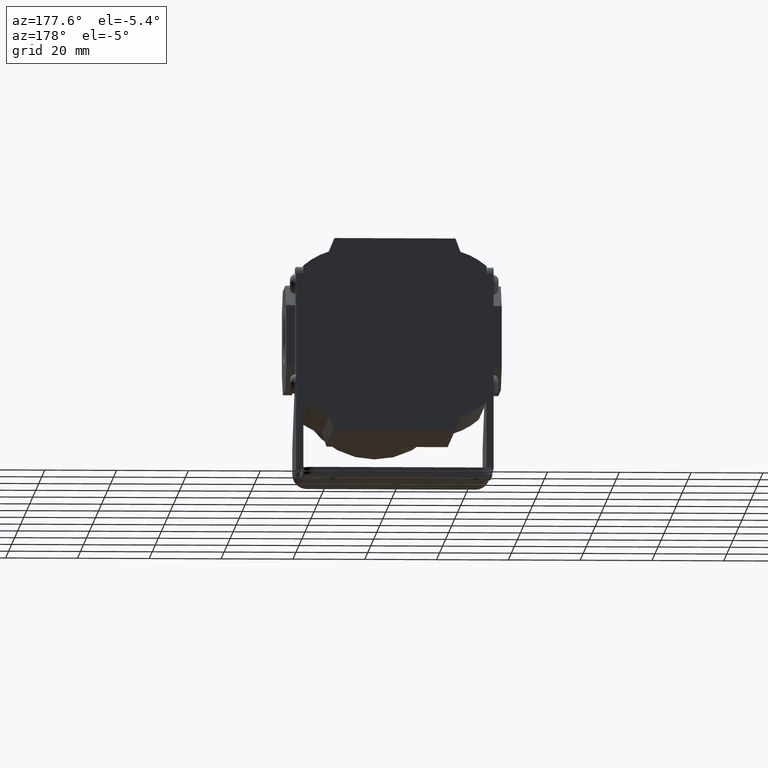
[diagram: clean part render]
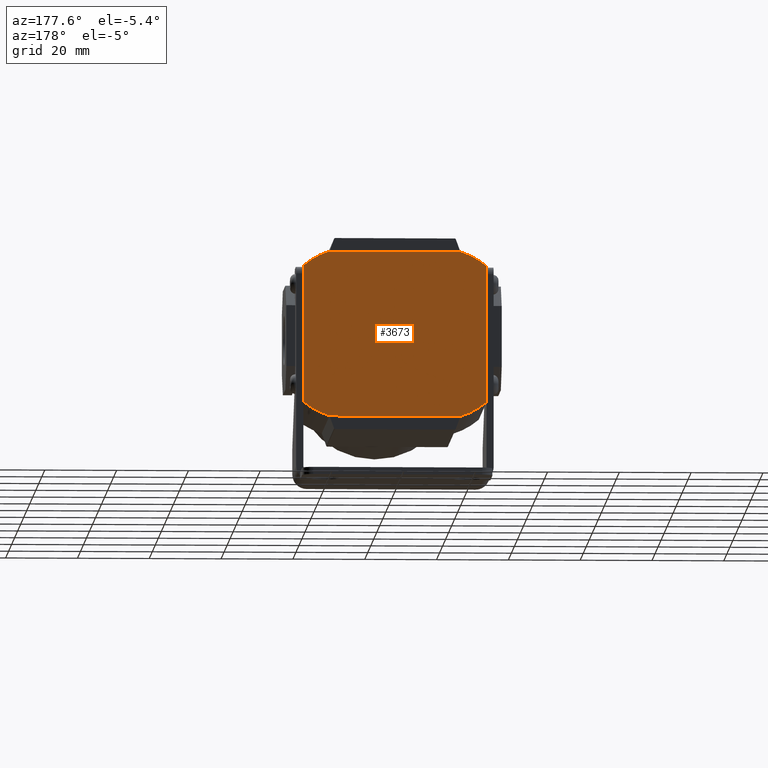
[diagram: same view with one face highlighted and labeled with its STEP entity id]
A machine part, auxiliary view. The second image highlights one B-rep face of the part: STEP entity #3673.
In plain terms, the highlighted planar face has unit normal (0, -1, 0).
Its self-contained STEP definition (entity closure, byte-faithful):
#99 = VERTEX_POINT ( 'NONE', #11549 ) ;
#122 = CARTESIAN_POINT ( 'NONE',  ( -12.44075424135393600, 21.00000000000000000, 3.852191570551038300 ) ) ;
#196 = DIRECTION ( 'NONE',  ( 9.130123557772670800E-017, 1.000000000000000000, -0.0000000000000000000 ) ) ;
#211 = VECTOR ( 'NONE', #10165, 1000.000000000000000 ) ;
#466 = CARTESIAN_POINT ( 'NONE',  ( 25.49999999999999600, 21.00000000000000000, 18.99999999999999600 ) ) ;
#474 = VERTEX_POINT ( 'NONE', #10865 ) ;
#476 = VERTEX_POINT ( 'NONE', #6152 ) ;
#493 = AXIS2_PLACEMENT_3D ( 'NONE', #9372, #3730, #10315 ) ;
#500 = DIRECTION ( 'NONE',  ( 1.000000000000000000, 1.360567432138672300E-016, 0.0000000000000000000 ) ) ;
#623 = EDGE_CURVE ( 'NONE', #8665, #474, #7223, .T. ) ;
#1080 = DIRECTION ( 'NONE',  ( -1.000000000000000000, -1.734723475976807300E-016, 0.0000000000000000000 ) ) ;
#1156 = AXIS2_PLACEMENT_3D ( 'NONE', #7674, #2053, #8638 ) ;
#1210 = CIRCLE ( 'NONE', #1156, 19.99999999999999600 ) ;
#1390 = ORIENTED_EDGE ( 'NONE', *, *, #8983, .F. ) ;
#1404 = PLANE ( 'NONE',  #10924 ) ;
#1751 = AXIS2_PLACEMENT_3D ( 'NONE', #5825, #196, #6769 ) ;
#1772 = VERTEX_POINT ( 'NONE', #7505 ) ;
#1854 = VERTEX_POINT ( 'NONE', #9546 ) ;
#2053 = DIRECTION ( 'NONE',  ( -9.130123557772670800E-017, -1.000000000000000000, 0.0000000000000000000 ) ) ;
#2355 = VECTOR ( 'NONE', #4525, 1000.000000000000000 ) ;
#2457 = ORIENTED_EDGE ( 'NONE', *, *, #6896, .T. ) ;
#2587 = EDGE_CURVE ( 'NONE', #99, #8187, #8305, .T. ) ;
#2702 = LINE ( 'NONE', #3579, #211 ) ;
#2996 = VECTOR ( 'NONE', #4661, 1000.000000000000000 ) ;
#3183 = DIRECTION ( 'NONE',  ( -0.0000000000000000000, -0.0000000000000000000, -1.000000000000000000 ) ) ;
#3566 = LINE ( 'NONE', #6908, #8272 ) ;
#3579 = CARTESIAN_POINT ( 'NONE',  ( 25.50000000000000400, 21.00000000000000400, 23.00000000000000000 ) ) ;
#3673 = ADVANCED_FACE ( 'NONE', ( #9775 ), #1404, .F. ) ;
#3730 = DIRECTION ( 'NONE',  ( -9.130123557772670800E-017, 1.000000000000000000, -0.0000000000000000000 ) ) ;
#3734 = CARTESIAN_POINT ( 'NONE',  ( -25.49999999999999600, 20.99999999999999600, 26.69999999999999900 ) ) ;
#3825 = EDGE_CURVE ( 'NONE', #1772, #474, #10514, .T. ) ;
#3980 = CIRCLE ( 'NONE', #10560, 19.99999999999999600 ) ;
#4002 = ORIENTED_EDGE ( 'NONE', *, *, #4464, .F. ) ;
#4280 = CARTESIAN_POINT ( 'NONE',  ( -18.21668986678495700, 21.00000000000000000, -23.00000000000000000 ) ) ;
#4464 = EDGE_CURVE ( 'NONE', #1854, #10940, #1210, .T. ) ;
#4525 = DIRECTION ( 'NONE',  ( -1.000000000000000000, -1.360567432138672300E-016, 0.0000000000000000000 ) ) ;
#4661 = DIRECTION ( 'NONE',  ( -0.0000000000000000000, -0.0000000000000000000, -1.000000000000000000 ) ) ;
#4706 = CARTESIAN_POINT ( 'NONE',  ( 25.50000000000000400, 21.00000000000000400, -18.99999999999999300 ) ) ;
#5188 = CARTESIAN_POINT ( 'NONE',  ( 25.50000000000000400, 21.00000000000000400, 26.69999999999999900 ) ) ;
#5825 = CARTESIAN_POINT ( 'NONE',  ( 12.44075424135393600, 21.00000000000000000, 3.852191570551038300 ) ) ;
#6122 = DIRECTION ( 'NONE',  ( 1.360567432138672300E-016, -1.000000000000000000, 0.0000000000000000000 ) ) ;
#6152 = CARTESIAN_POINT ( 'NONE',  ( -18.21668986678495700, 21.00000000000000000, 23.00000000000000000 ) ) ;
#6704 = DIRECTION ( 'NONE',  ( 9.130123557772670800E-017, -1.000000000000000000, -0.0000000000000000000 ) ) ;
#6769 = DIRECTION ( 'NONE',  ( 1.000000000000000000, -1.734723475976807300E-016, 0.0000000000000000000 ) ) ;
#6896 = EDGE_CURVE ( 'NONE', #476, #99, #2702, .T. ) ;
#6908 = CARTESIAN_POINT ( 'NONE',  ( 25.50000000000000400, 21.00000000000000400, 26.69999999999999900 ) ) ;
#7088 = EDGE_LOOP ( 'NONE', ( #4002, #8189, #10215, #9028, #1390, #2457, #11932, #8779 ) ) ;
#7223 = CIRCLE ( 'NONE', #493, 19.99999999999999600 ) ;
#7327 = LINE ( 'NONE', #12052, #2355 ) ;
#7505 = CARTESIAN_POINT ( 'NONE',  ( -25.49999999999999600, 21.00000000000000000, 18.99999999999999600 ) ) ;
#7674 = CARTESIAN_POINT ( 'NONE',  ( 12.44075424135393600, 21.00000000000000000, -3.852191570551038300 ) ) ;
#8187 = VERTEX_POINT ( 'NONE', #466 ) ;
#8189 = ORIENTED_EDGE ( 'NONE', *, *, #9386, .T. ) ;
#8272 = VECTOR ( 'NONE', #3183, 1000.000000000000000 ) ;
#8305 = CIRCLE ( 'NONE', #1751, 19.99999999999999600 ) ;
#8638 = DIRECTION ( 'NONE',  ( 1.000000000000000000, -1.734723475976807300E-016, 0.0000000000000000000 ) ) ;
#8665 = VERTEX_POINT ( 'NONE', #4280 ) ;
#8779 = ORIENTED_EDGE ( 'NONE', *, *, #9700, .T. ) ;
#8983 = EDGE_CURVE ( 'NONE', #476, #1772, #3980, .T. ) ;
#9028 = ORIENTED_EDGE ( 'NONE', *, *, #3825, .F. ) ;
#9372 = CARTESIAN_POINT ( 'NONE',  ( -12.44075424135393600, 21.00000000000000000, -3.852191570551038300 ) ) ;
#9386 = EDGE_CURVE ( 'NONE', #1854, #8665, #7327, .T. ) ;
#9546 = CARTESIAN_POINT ( 'NONE',  ( 18.21668986678495700, 21.00000000000000000, -23.00000000000000000 ) ) ;
#9700 = EDGE_CURVE ( 'NONE', #8187, #10940, #3566, .T. ) ;
#9775 = FACE_OUTER_BOUND ( 'NONE', #7088, .T. ) ;
#10165 = DIRECTION ( 'NONE',  ( 1.000000000000000000, 1.360567432138672300E-016, 0.0000000000000000000 ) ) ;
#10215 = ORIENTED_EDGE ( 'NONE', *, *, #623, .T. ) ;
#10315 = DIRECTION ( 'NONE',  ( -1.000000000000000000, -1.734723475976807300E-016, 0.0000000000000000000 ) ) ;
#10514 = LINE ( 'NONE', #3734, #2996 ) ;
#10560 = AXIS2_PLACEMENT_3D ( 'NONE', #122, #6704, #1080 ) ;
#10865 = CARTESIAN_POINT ( 'NONE',  ( -25.49999999999999600, 21.00000000000000000, -18.99999999999999600 ) ) ;
#10924 = AXIS2_PLACEMENT_3D ( 'NONE', #5188, #6122, #500 ) ;
#10940 = VERTEX_POINT ( 'NONE', #4706 ) ;
#11549 = CARTESIAN_POINT ( 'NONE',  ( 18.21668986678495700, 21.00000000000000000, 23.00000000000000000 ) ) ;
#11932 = ORIENTED_EDGE ( 'NONE', *, *, #2587, .T. ) ;
#12052 = CARTESIAN_POINT ( 'NONE',  ( 25.50000000000000400, 21.00000000000000400, -22.99999999999999600 ) ) ;